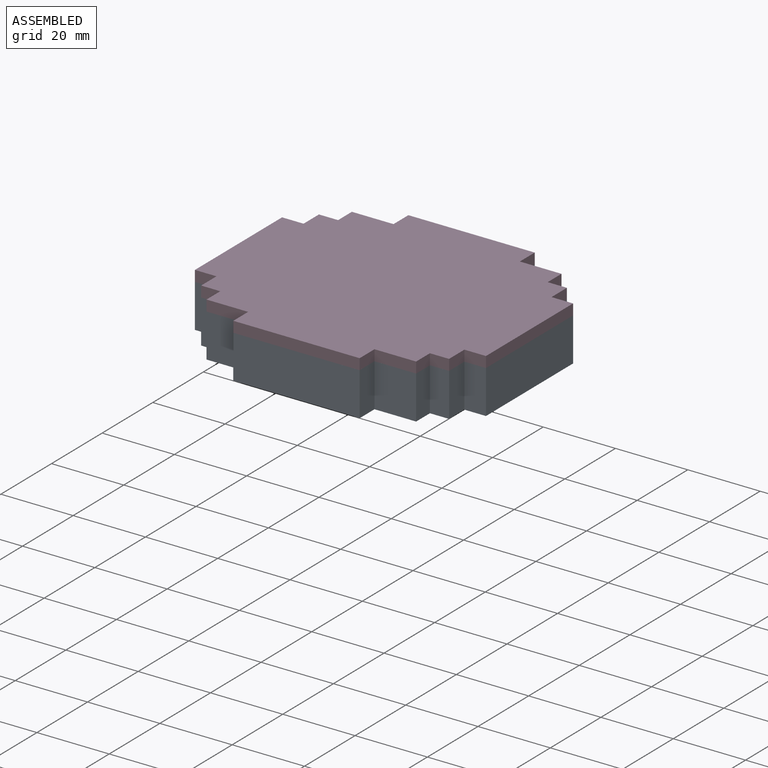
[diagram: assembled view]
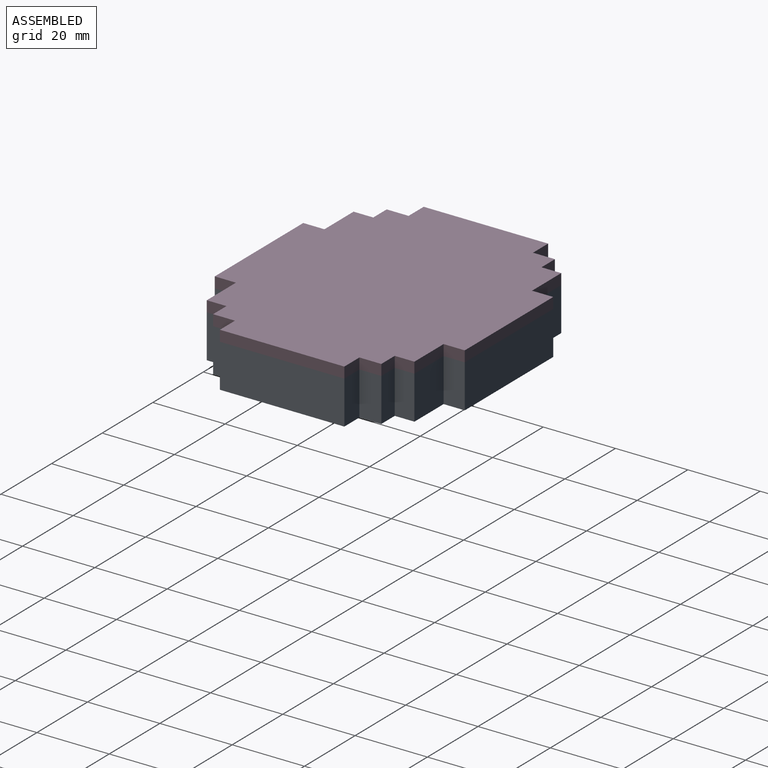
[diagram: assembled view, second angle]
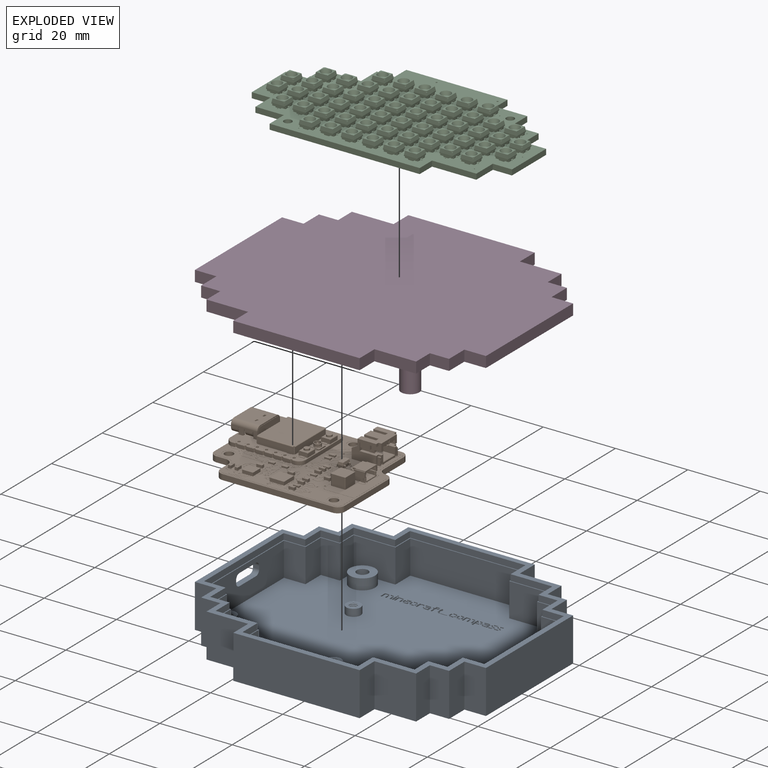
[diagram: exploded view]
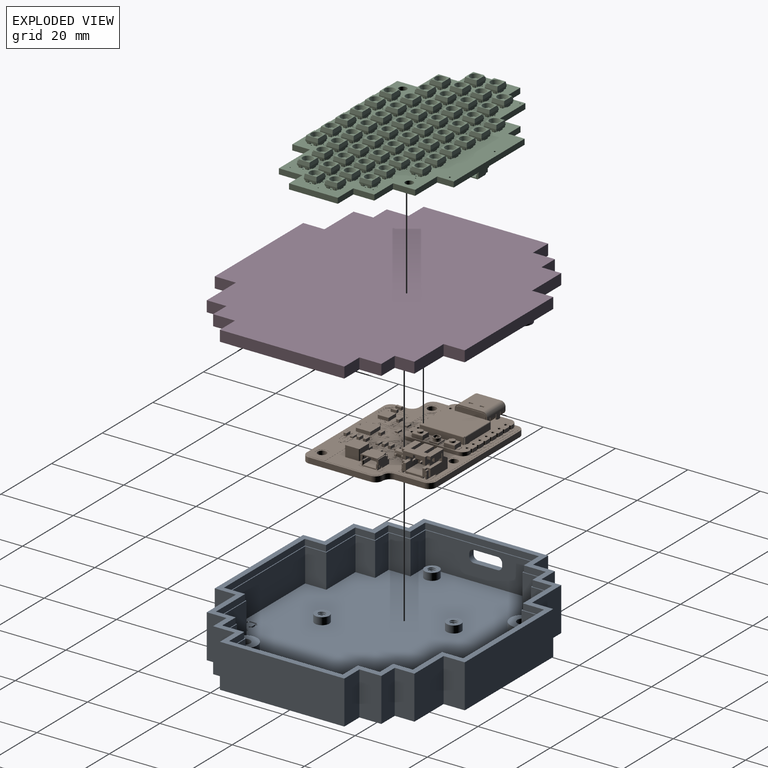
[diagram: exploded view, second angle]
FCSTD DOCUMENT  (FreeCAD 1.0R39285 (Git))
Label: assembly
License: All rights reserved
LicenseURL: http://en.wikipedia.org/wiki/All_rights_reserved
objects: App::FeaturePython×15, App::Link×4, TechDraw::DrawProjGroupItem×3, Assembly::JointGroup×1, Assembly::ViewGroup×1, Assembly::AssemblyObject×1, TechDraw::DrawSVGTemplate×1, TechDraw::DrawProjGroup×1, TechDraw::DrawPage×1
EXTERNAL_REF file=minecraftCompassVer.4.FCStd obj=Body005
EXTERNAL_REF file=minecraftCompassVer.4.FCStd obj=Body003
EXTERNAL_REF file=minecraftCompassVer.4.FCStd obj=new_ledMatrix_1
EXTERNAL_REF file=minecraftCompassVer.4.FCStd obj=daughter_board_1

FEATURE [App::Link] bottom_plate
  LinkedObject = -> <external minecraftCompassVer.4.FCStd>#Body005
FEATURE [App::FeaturePython] GroundedJoint  # Assembly grounded joint (typed FeaturePython)
  ObjectToGround = -> bottom_plate
FEATURE [App::Link] top_plate
  LinkPlacement = pos=(0,0,8e-16) rot=(0,0,1;0rad)
  LinkedObject = -> <external minecraftCompassVer.4.FCStd>#Body003
  Placement = pos=(0,0,8e-16) rot=(0,0,1;0rad)
FEATURE [App::Link] new_ledMatrix_1  label="new_ledMatrix 1"
  LinkPlacement = pos=(-217.447,50.0157,9.94) rot=(0,0,-1;8e-05rad)
  LinkedObject = -> <external minecraftCompassVer.4.FCStd>#new_ledMatrix_1
  Placement = pos=(-217.447,50.0157,9.94) rot=(0,0,-1;8e-05rad)
FEATURE [App::Link] daughter_board_1  label="daughter_board 1"
  LinkPlacement = pos=(-121.511,50.9876,3.05) rot=(0,0,1;0.000103rad)
  LinkedObject = -> <external minecraftCompassVer.4.FCStd>#daughter_board_1
  Placement = pos=(-121.511,50.9876,3.05) rot=(0,0,1;0.000103rad)
FEATURE [App::FeaturePython] Joint  label="bottom-daughter"  # Assembly joint (typed FeaturePython)
  Activated = true
  AngleMax = 0
  AngleMin = 0
  Detach1 = false
  Detach2 = false
  Distance = 0
  Distance2 = 0
  EnableAngleMax = false
  EnableAngleMin = false
  EnableLengthMax = false
  EnableLengthMin = false
  JointType = 0 (Fixed)
  LengthMax = 0
  LengthMin = 0
  Offset2 = pos=(0,0,0) rot=(0,0,1;0.092502rad)
  Placement1 = pos=(120.264,-69,-0.05) rot=(0,0,1;0.0924rad)
  Placement2 = pos=(-1.24,-18,3) rot=(0,0,1;0.092502rad)
  Reference1 = -> Assembly [daughter_board_1.Part__Feature327.Edge907,daughter_board_1.Part__Feature327.Edge907]
  Reference2 = -> Assembly [bottom_plate.Edge819,bottom_plate.Edge819]
FEATURE [App::FeaturePython] Joint001  label="bottom-top"  # Assembly joint (typed FeaturePython)
  Activated = true
  AngleMax = 0
  AngleMin = 0
  Detach1 = false
  Detach2 = false
  Distance = 0
  Distance2 = 0
  EnableAngleMax = false
  EnableAngleMin = false
  EnableLengthMax = false
  EnableLengthMin = false
  JointType = 0 (Fixed)
  LengthMax = 0
  LengthMin = 0
  Placement1 = pos=(17.4742,34.5748,12) rot=(0,0,1;0rad)
  Placement2 = pos=(17.4742,34.5748,12) rot=(0,0,1;0rad)
  Reference1 = -> Assembly [top_plate.Edge1,top_plate.Vertex2]
  Reference2 = -> Assembly [bottom_plate.Edge3,bottom_plate.Vertex3]
FEATURE [App::FeaturePython] Joint002  label="top-matrix"  # Assembly joint (typed FeaturePython)
  Activated = true
  AngleMax = 0
  AngleMin = 0
  Detach1 = false
  Detach2 = false
  Distance = 0
  Distance2 = 0
  EnableAngleMax = false
  EnableAngleMin = false
  EnableLengthMax = false
  EnableLengthMin = false
  JointType = 0 (Fixed)
  LengthMax = 0
  LengthMin = 0
  Offset2 = pos=(0,0,0) rot=(0,0,-1;0.09512rad)
  Placement1 = pos=(197.152,-59,1.56) rot=(0,0,1;0.0952rad)
  Placement2 = pos=(-20.3,-9,11.5) rot=(0.998869,0.047542,0;3.14159rad)
  Reference1 = -> Assembly [new_ledMatrix_1.Part__Feature115.Edge26,new_ledMatrix_1.Part__Feature115.Edge26]
  Reference2 = -> Assembly [top_plate.Edge410,top_plate.Edge410]
FEATURE [Assembly::JointGroup] Joints
  Group = -> [GroundedJoint,Joint,Joint001,Joint002]
FEATURE [App::FeaturePython] Move  # WARN: FeaturePython — macro-defined, semantics opaque (R4)
  MoveType = 0
  MovementTransform = pos=(0,-1e-05,48) rot=(0,0,1;0rad)
  References = -> Assembly [top_plate.]
FEATURE [App::FeaturePython] Move001  # WARN: FeaturePython — macro-defined, semantics opaque (R4)
  MoveType = 0
  MovementTransform = pos=(0.00066,-1e-05,33) rot=(0,0,1;8e-05rad)
  References = -> Assembly [new_ledMatrix_1.]
FEATURE [App::FeaturePython] Move002  # WARN: FeaturePython — macro-defined, semantics opaque (R4)
  MoveType = 0
  MovementTransform = pos=(0.00046,-0.00193,18) rot=(0,0,-1;0.000103rad)
  References = -> Assembly [daughter_board_1.]
FEATURE [App::FeaturePython] Move003  # WARN: FeaturePython — macro-defined, semantics opaque (R4)
  MoveType = 0
  MovementTransform = pos=(0,0,4) rot=(0,0,1;0rad)
  References = -> Assembly [daughter_board_1.]
FEATURE [App::FeaturePython] Move004  # WARN: FeaturePython — macro-defined, semantics opaque (R4)
  MoveType = 0
  MovementTransform = pos=(0,0,-9.00001) rot=(0,0,1;0rad)
  References = -> Assembly [daughter_board_1.]
FEATURE [App::FeaturePython] Move005  # WARN: FeaturePython — macro-defined, semantics opaque (R4)
  MoveType = 0
  MovementTransform = pos=(0,0,-15) rot=(0,0,1;0rad)
  References = -> Assembly [new_ledMatrix_1.]
FEATURE [App::FeaturePython] Move006  # WARN: FeaturePython — macro-defined, semantics opaque (R4)
  MoveType = 0
  MovementTransform = pos=(0,0,-17) rot=(0,0,1;0rad)
  References = -> Assembly [top_plate.]
FEATURE [App::FeaturePython] Move007  # WARN: FeaturePython — macro-defined, semantics opaque (R4)
  MoveType = 0
  MovementTransform = pos=(0,8.00001,0) rot=(0,0,1;0rad)
  References = -> Assembly [new_ledMatrix_1.]
FEATURE [App::FeaturePython] Move008  # WARN: FeaturePython — macro-defined, semantics opaque (R4)
  MoveType = 0
  MovementTransform = pos=(0,38.0001,0) rot=(0,0,1;0rad)
  References = -> Assembly [top_plate.]
FEATURE [App::FeaturePython] Exploded_View  # WARN: FeaturePython — macro-defined, semantics opaque (R4)
  Group = -> [Move,Move001,Move002,Move003,Move004,Move005,Move006,Move007,Move008]
FEATURE [App::FeaturePython] Exploded_View001  # WARN: FeaturePython — macro-defined, semantics opaque (R4)
FEATURE [Assembly::ViewGroup] Exploded_Views
  Group = -> [Exploded_View,Exploded_View001]
FEATURE [Assembly::AssemblyObject] Assembly
  Group = -> [Joints,bottom_plate,GroundedJoint,top_plate,new_ledMatrix_1,daughter_board_1,Joint,Joint001,Joint002,Exploded_Views,Exploded_View,Move,Move001,Move002,Move003,Move004,Move005,Move006,Move007,Move008,Exploded_View001]
  Origin = -> Origin
  Type = Assembly
FEATURE [TechDraw::DrawSVGTemplate] Template  label="C:/Program Files/FreeCAD 1.0/data/Mod/TechDraw/Templates/A2_Landscape_blank.svg"
  Height = 420
  Orientation = 1
  Template = C:/Program Files/FreeCAD 1.0/data/Mod/TechDraw/Templates/A2_Landscape_blank.svg
  Width = 594
  expr: Label = Template
FEATURE [TechDraw::DrawProjGroupItem] View  label="Front"
  CoarseView = false
  Direction = (0.831768,-0.299177,0.467605)
  Focus = 100
  HardHidden = false
  IsoCount = 0
  IsoHidden = false
  IsoVisible = false
  LockPosition = true
  Perspective = false
  Rotation = 0
  RotationVector = (1,0,0)
  Scale = 1.2
  ScaleType = 2
  ScrubCount = 1
  SeamHidden = false
  SeamVisible = false
  SmoothHidden = false
  SmoothVisible = true
  Source = -> [Exploded_View]
  Type = 0
  X = 0
  XDirection = (0.456193,0.848347,-0.26869)
  Y = 0
FEATURE [TechDraw::DrawProjGroupItem] ProjItem  label="FrontTopLeft"
  CoarseView = false
  Direction = (0.0342192,-0.410334,0.911293)
  Focus = 100
  HardHidden = false
  IsoCount = 0
  IsoHidden = false
  IsoVisible = false
  LockPosition = false
  Perspective = false
  Rotation = 0
  RotationVector = (1,0,0)
  Scale = 1.2
  ScaleType = 2
  ScrubCount = 1
  SeamHidden = false
  SeamVisible = false
  SmoothHidden = false
  SmoothVisible = true
  Source = -> [Exploded_View]
  Type = 6
  X = 128.843
  XDirection = (0.910726,0.388322,0.140654)
  Y = -135.648
FEATURE [TechDraw::DrawProjGroupItem] ProjItem001  label="FrontBottomLeft"
  CoarseView = false
  Direction = (0.399458,-0.914714,-0.061093)
  Focus = 100
  HardHidden = false
  IsoCount = 0
  IsoHidden = false
  IsoVisible = false
  LockPosition = false
  Perspective = false
  Rotation = 0
  RotationVector = (1,0,0)
  Scale = 1.2
  ScaleType = 0
  ScrubCount = 1
  SeamHidden = false
  SeamVisible = false
  SmoothHidden = false
  SmoothVisible = true
  Source = -> [Exploded_View]
  Type = 8
  X = 128.843
  XDirection = (0.910726,0.388322,0.140654)
  Y = 104.01
FEATURE [TechDraw::DrawProjGroup] ProjGroup
  Anchor = -> View
  AutoDistribute = true
  LockPosition = false
  ProjectionType = 0
  Rotation = 0
  Scale = 1.2
  ScaleType = 0
  Source = -> [Exploded_View]
  Views = -> [View,ProjItem,ProjItem001]
  X = 44.0104
  Y = 130.178
  spacingX = 15
  spacingY = 15
FEATURE [TechDraw::DrawPage] Page
  KeepUpdated = true
  NextBalloonIndex = 1
  ProjectionType = 0
  Scale = 1.2
  Template = -> Template
  Views = -> [ProjGroup]
